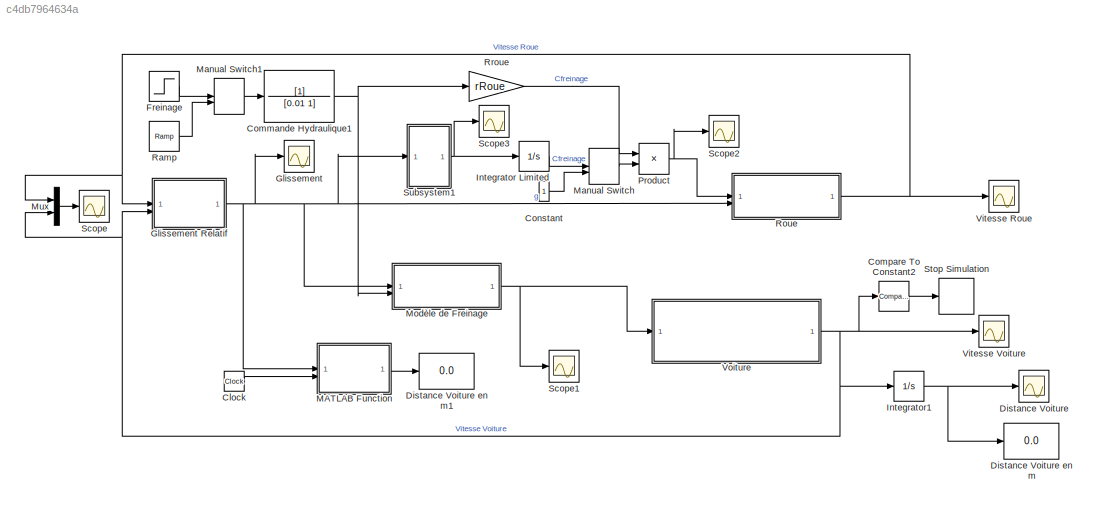
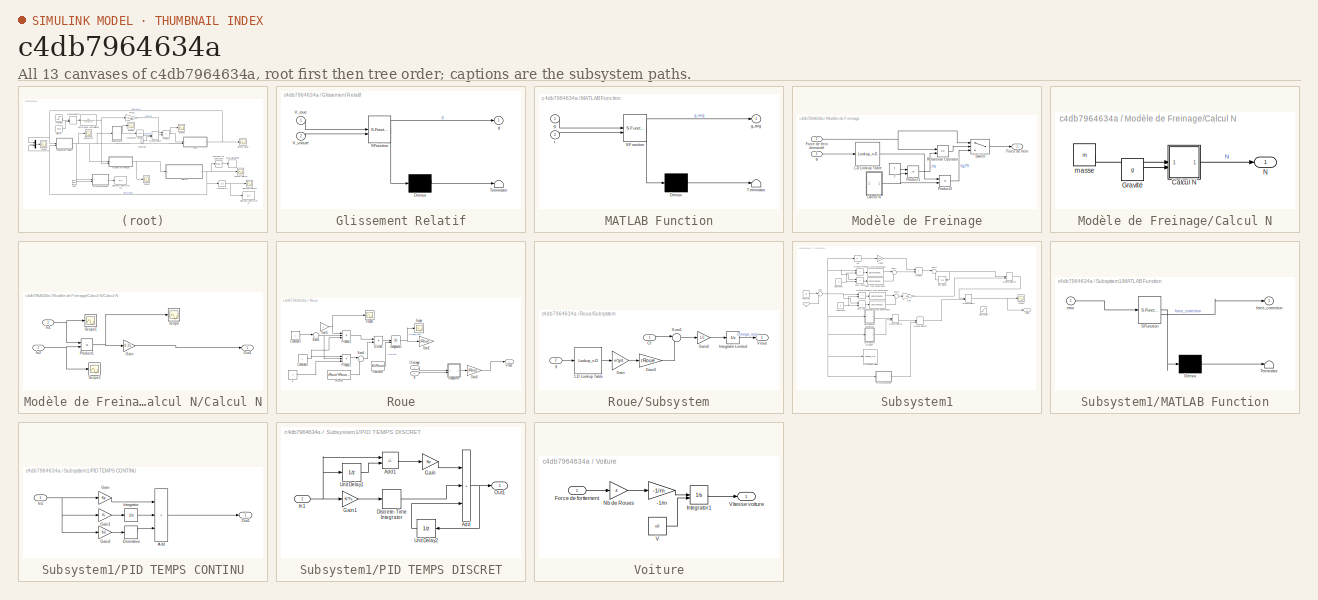
[diagram: thumbnail index - all 13 canvases of the model, root first then tree order]
MODEL slx_c4db7964634a
KIND model
CONFIG AbsTol = auto
CONFIG EnableMultiTasking = off
CONFIG FixedStep = auto
CONFIG InitFcn = Cte_TP_ABS_CHERIF
CONFIG MaxStep = auto
CONFIG MinStep = auto
CONFIG RelTol = 1e-3
CONFIG SampleTimeConstraint = Unconstrained
CONFIG SolverName = ode45
CONFIG StartTime = 0.0
CONFIG StopTime = 10é
BLOCK [Clock] Clock
BLOCK [TransferFcn] Commande Hydraulique1
  Denominator = [0.01 1]
BLOCK [Reference] Compare To Constant2  REF=simulink/Logic and Bit
Operations/Compare
To Constant
  SourceBlock = simulink/Logic and Bit\nOperations/Compare\nTo Constant
  SourceType = Compare To Constant
BLOCK [Constant] Constant
BLOCK [Scope] Distance Voiture
  Floating = off
  NumInputPorts = 1
  ScopeSpecificationString = Simulink.scopes.TimeScopeBlockCfg('CurrentConfiguration', extmgr.ConfigurationSet(extmgr.Configuration('Core','General UI',true),extmgr.Configuration('Core','Source UI',true),extmgr.Configuration('Sources','WiredSimulink',true,'DataLoggingVariableName','ScopeData9'),extmgr.Configuration('Visuals','Time Domain',true,'SerializedDisplays',{struct('MinYLimReal','-7.36109','MaxYLimReal','66.24979','YLa...<+1639ch>
BLOCK [Display] Distance Voiture en m
  Decimation = 1
BLOCK [Display] Distance Voiture en m1
  Decimation = 1
BLOCK [Step] Freinage
  After = 4000
  SampleTime = 0
  Time = 0
BLOCK [Scope] Glissement
  Floating = off
  NumInputPorts = 1
  ScopeSpecificationString = Simulink.scopes.TimeScopeBlockCfg('CurrentConfiguration', extmgr.ConfigurationSet(extmgr.Configuration('Core','General UI',true),extmgr.Configuration('Core','Source UI',true),extmgr.Configuration('Sources','WiredSimulink',true,'DataLoggingVariableName','ScopeData7'),extmgr.Configuration('Visuals','Time Domain',true,'SerializedDisplays',{struct('MinYLimReal','-337.36601','MaxYLimReal','38.59622','Y...<+1501ch>
BLOCK [SubSystem] Glissement Relatif
  ErrorFcn = Stateflow.Translate.translate
  PermitHierarchicalResolution = ExplicitOnly
  SFBlockType = MATLAB Function
  TreatAsAtomicUnit = on
BLOCK [Demux] Glissement Relatif/ Demux 
  Outputs = 1
BLOCK [S-Function] Glissement Relatif/ SFunction 
  EnableBusSupport = on
  FunctionName = sf_sfun
  PortCounts = [2 2]
  SFcnIsStateOwnerBlock = off
  SFunctionDeploymentMode = off
  Tag = Stateflow S-Function 2
BLOCK [Terminator] Glissement Relatif/ Terminator 
BLOCK [Inport] Glissement Relatif/V_roue
BLOCK [Inport] Glissement Relatif/V_voiture
  Port = 2
BLOCK [Outport] Glissement Relatif/g
BLOCK [Integrator] Integrator Limited
  LimitOutput = on
  LowerSaturationLimit = 0
  UpperSaturationLimit = 1
BLOCK [Integrator] Integrator1
BLOCK [SubSystem] MATLAB Function
  ErrorFcn = Stateflow.Translate.translate
  PermitHierarchicalResolution = ExplicitOnly
  SFBlockType = MATLAB Function
  TreatAsAtomicUnit = on
BLOCK [Demux] MATLAB Function/ Demux 
  Outputs = 1
BLOCK [S-Function] MATLAB Function/ SFunction 
  EnableBusSupport = on
  FunctionName = sf_sfun
  PortCounts = [2 2]
  SFcnIsStateOwnerBlock = off
  SFunctionDeploymentMode = off
  Tag = Stateflow S-Function 3
BLOCK [Terminator] MATLAB Function/ Terminator 
BLOCK [Inport] MATLAB Function/g
BLOCK [Outport] MATLAB Function/g_avg
BLOCK [Inport] MATLAB Function/t
  Port = 2
BLOCK [ManualSwitch] Manual Switch
BLOCK [ManualSwitch] Manual Switch1
BLOCK [SubSystem] Modèle de Freinage
BLOCK [Lookup_n-D] Modèle de Freinage/1-D Lookup Table
  BreakpointsForDimension1 = [0;0.050000000000000003;0.10000000000000001;0.14999999999999999;0.20000000000000001;0.25;0.29999999999999999;0.34999999999999998;0.40000000000000002;0.45000000000000001;0.5;0.55000000000000004;0.59999999999999998;0.65000000000000002;0.69999999999999996;0.75;0.80000000000000004;0.84999999999999998;0.90000000000000002;0.94999999999999996;1]
  InputPortMap = u0
  InternalRulePriority = Speed
  NumberOfTableDimensions = 1
  RndMeth = Simplest
  Table = [0;0.59999999999999998;0.92000000000000004;0.93999999999999995;0.94999999999999996;0.93000000000000005;0.90000000000000002;0.84999999999999998;0.80000000000000004;0.75;0.69999999999999996;0.67000000000000004;0.66000000000000003;0.65000000000000002;0.64500000000000002;0.64000000000000001;0.63700000000000001;0.63500000000000001;0.63;0.625;0.62]
BLOCK [SubSystem] Modèle de Freinage/Calcul N
BLOCK [SubSystem] Modèle de Freinage/Calcul N/Calcul N
BLOCK [Gain] Modèle de Freinage/Calcul N/Calcul N/Gain
  Gain = 0.25
BLOCK [Inport] Modèle de Freinage/Calcul N/Calcul N/In1
BLOCK [Inport] Modèle de Freinage/Calcul N/Calcul N/In2
  Port = 2
BLOCK [Outport] Modèle de Freinage/Calcul N/Calcul N/Out1
BLOCK [Product] Modèle de Freinage/Calcul N/Calcul N/Product1
BLOCK [Scope] Modèle de Freinage/Calcul N/Calcul N/Scope
  Floating = off
  NumInputPorts = 1
  ScopeSpecificationString = Simulink.scopes.TimeScopeBlockCfg('CurrentConfiguration', extmgr.ConfigurationSet(extmgr.Configuration('Core','General UI',true),extmgr.Configuration('Core','Source UI',true),extmgr.Configuration('Sources','WiredSimulink',true,'DataLoggingVariableName','ScopeData2'),extmgr.Configuration('Visuals','Time Domain',true,'SerializedDisplays',{struct('MinYLimReal','8810.00000','MaxYLimReal','10810.00000'...<+1559ch>
BLOCK [Scope] Modèle de Freinage/Calcul N/Calcul N/Scope1
  Floating = off
  NumInputPorts = 1
  ScopeSpecificationString = Simulink.scopes.TimeScopeBlockCfg('CurrentConfiguration', extmgr.ConfigurationSet(extmgr.Configuration('Core','General UI',true),extmgr.Configuration('Core','Source UI',true),extmgr.Configuration('Sources','WiredSimulink',true,'DataLoggingVariableName','ScopeData3'),extmgr.Configuration('Visuals','Time Domain',true,'SerializedDisplays',{struct('MinYLimReal','900.00000','MaxYLimReal','1100.00000','...<+1546ch>
BLOCK [Scope] Modèle de Freinage/Calcul N/Calcul N/Scope2
  Floating = off
  NumInputPorts = 1
  ScopeSpecificationString = Simulink.scopes.TimeScopeBlockCfg('CurrentConfiguration', extmgr.ConfigurationSet(extmgr.Configuration('Core','General UI',true),extmgr.Configuration('Core','Source UI',true),extmgr.Configuration('Sources','WiredSimulink',true,'DataLoggingVariableName','ScopeData4'),extmgr.Configuration('Visuals','Time Domain',true,'SerializedDisplays',{struct('MinYLimReal','8.81','MaxYLimReal','10.81','YLabelReal...<+1506ch>
BLOCK [Constant] Modèle de Freinage/Calcul N/Gravité
  Value = g
BLOCK [Outport] Modèle de Freinage/Calcul N/N
BLOCK [Constant] Modèle de Freinage/Calcul N/masse
  Value = m
BLOCK [Outport] Modèle de Freinage/Force de frein
BLOCK [Inport] Modèle de Freinage/Force de frein demandé
  Port = 2
BLOCK [Product] Modèle de Freinage/Product1
BLOCK [Product] Modèle de Freinage/Product3
BLOCK [RelationalOperator] Modèle de Freinage/Relational Operator
  InputSameDT = off
  Operator = <=
  OutDataTypeStr = boolean
  RndMeth = Simplest
BLOCK [Switch] Modèle de Freinage/Switch
  InputSameDT = off
  SaturateOnIntegerOverflow = off
  Threshold = 1
BLOCK [Constant] Modèle de Freinage/f
  Value = f
BLOCK [Inport] Modèle de Freinage/g
BLOCK [Mux] Mux
  DisplayOption = bar
  Inputs = 2
BLOCK [Product] Product
BLOCK [Reference] Ramp  REF=simulink/Sources/Ramp
  SourceBlock = simulink/Sources/Ramp
  SourceType = Ramp
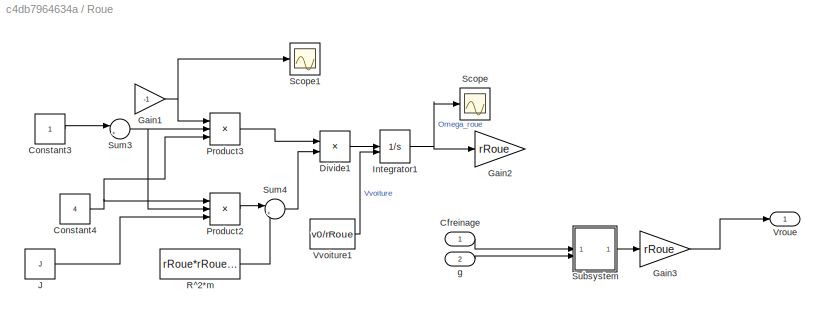
BLOCK [SubSystem] Roue
BLOCK [Inport] Roue/Cfreinage
BLOCK [Constant] Roue/Constant3
BLOCK [Constant] Roue/Constant4
  Value = 4
BLOCK [Product] Roue/Divide1
  Inputs = */
BLOCK [Gain] Roue/Gain1
  Gain = -1
BLOCK [Gain] Roue/Gain2
  Gain = rRoue
BLOCK [Gain] Roue/Gain3
  Gain = rRoue
BLOCK [Integrator] Roue/Integrator1
  InitialCondition = 27.77/0.3
  InitialConditionSource = external
BLOCK [Constant] Roue/J
  Value = J
BLOCK [Product] Roue/Product2
  Inputs = 3
BLOCK [Product] Roue/Product3
  Inputs = 3
BLOCK [Constant] Roue/R^2*m
  Value = rRoue*rRoue*m
BLOCK [Scope] Roue/Scope
  Floating = off
  NumInputPorts = 1
  ScopeSpecificationString = Simulink.scopes.TimeScopeBlockCfg('CurrentConfiguration', extmgr.ConfigurationSet(extmgr.Configuration('Core','General UI',true),extmgr.Configuration('Core','Source UI',true),extmgr.Configuration('Sources','WiredSimulink',true,'DataLoggingVariableName','ScopeData2'),extmgr.Configuration('Visuals','Time Domain',true,'SerializedDisplays',{struct('MinYLimReal','82.56667','MaxYLimReal','102.56667','YL...<+1510ch>
BLOCK [Scope] Roue/Scope1
  Floating = off
  NumInputPorts = 1
  ScopeSpecificationString = Simulink.scopes.TimeScopeBlockCfg('CurrentConfiguration', extmgr.ConfigurationSet(extmgr.Configuration('Core','General UI',true),extmgr.Configuration('Core','Source UI',true),extmgr.Configuration('Sources','WiredSimulink',true,'DataLoggingVariableName','ScopeData4'),extmgr.Configuration('Visuals','Time Domain',true,'SerializedDisplays',{struct('MinYLimReal','-1.00000','MaxYLimReal','1.00000','YLab...<+1530ch>
BLOCK [SubSystem] Roue/Subsystem
BLOCK [Lookup_n-D] Roue/Subsystem/1-D Lookup Table
  BreakpointsForDimension1 = [0;0.050000000000000003;0.10000000000000001;0.14999999999999999;0.20000000000000001;0.25;0.29999999999999999;0.34999999999999998;0.40000000000000002;0.45000000000000001;0.5;0.55000000000000004;0.59999999999999998;0.65000000000000002;0.69999999999999996;0.75;0.80000000000000004;0.84999999999999998;0.90000000000000002;0.94999999999999996;1]
  InputPortMap = u0
  InternalRulePriority = Speed
  NumberOfTableDimensions = 1
  RndMeth = Simplest
  Table = [0;0.59999999999999998;0.92000000000000004;0.93999999999999995;0.94999999999999996;0.93000000000000005;0.90000000000000002;0.84999999999999998;0.80000000000000004;0.75;0.69999999999999996;0.67000000000000004;0.66000000000000003;0.65000000000000002;0.64500000000000002;0.64000000000000001;0.63700000000000001;0.63500000000000001;0.63;0.625;0.62]
BLOCK [Inport] Roue/Subsystem/Cf
BLOCK [Gain] Roue/Subsystem/Gain
  Gain = m*g/4
BLOCK [Gain] Roue/Subsystem/Gain3
  Gain = rRoue
BLOCK [Gain] Roue/Subsystem/Gain4
  Gain = 1/J
BLOCK [Integrator] Roue/Subsystem/Integrator Limited
  InitialCondition = v0/rRoue
  LimitOutput = on
  LowerSaturationLimit = 0
  UpperSaturationLimit = 1000
BLOCK [Sum] Roue/Subsystem/Sum1
  Inputs = |-+
BLOCK [Outport] Roue/Subsystem/Vroue
BLOCK [Inport] Roue/Subsystem/g
  Port = 2
BLOCK [Sum] Roue/Sum3
  Inputs = |+-
BLOCK [Sum] Roue/Sum4
  Inputs = |++
BLOCK [Outport] Roue/Vroue
BLOCK [Constant] Roue/Vvoiture1
  Value = v0/rRoue
BLOCK [Inport] Roue/g
  Port = 2
BLOCK [Gain] Rroue
  Gain = rRoue
BLOCK [Scope] Scope
  Floating = off
  NumInputPorts = 1
  ScopeSpecificationString = Simulink.scopes.TimeScopeBlockCfg('CurrentConfiguration', extmgr.ConfigurationSet(extmgr.Configuration('Core','General UI',true),extmgr.Configuration('Core','Source UI',true),extmgr.Configuration('Sources','WiredSimulink',true,'DataLoggingVariableName','ScopeData10'),extmgr.Configuration('Visuals','Time Domain',true,'SerializedDisplays',{struct('MinYLimReal','-3.46627','MaxYLimReal','31.2407','YLa...<+1506ch>
BLOCK [Scope] Scope1
  Floating = off
  NumInputPorts = 1
  ScopeSpecificationString = Simulink.scopes.TimeScopeBlockCfg('CurrentConfiguration', extmgr.ConfigurationSet(extmgr.Configuration('Core','General UI',true),extmgr.Configuration('Core','Source UI',true),extmgr.Configuration('Sources','WiredSimulink',true,'DataLoggingVariableName','ScopeData8'),extmgr.Configuration('Visuals','Time Domain',true,'SerializedDisplays',{struct('MinYLimReal','-9896.88785','MaxYLimReal','3688.40421'...<+1530ch>
BLOCK [Scope] Scope2
  Floating = off
  NumInputPorts = 1
  ScopeSpecificationString = Simulink.scopes.TimeScopeBlockCfg('CurrentConfiguration', extmgr.ConfigurationSet(extmgr.Configuration('Core','General UI',true),extmgr.Configuration('Core','Source UI',true),extmgr.Configuration('Sources','WiredSimulink',true,'DataLoggingVariableName','ScopeData1'),extmgr.Configuration('Visuals','Time Domain',true,'SerializedDisplays',{struct('MinYLimReal','-75.00000','MaxYLimReal','675.00000','Y...<+1507ch>
BLOCK [Scope] Scope3
  Floating = off
  NumInputPorts = 1
  ScopeSpecificationString = Simulink.scopes.TimeScopeBlockCfg('CurrentConfiguration', extmgr.ConfigurationSet(extmgr.Configuration('Core','General UI',true),extmgr.Configuration('Core','Source UI',true),extmgr.Configuration('Sources','WiredSimulink',true,'DataLoggingVariableName','ScopeData2'),extmgr.Configuration('Visuals','Time Domain',true,'SerializedDisplays',{struct('MinYLimReal','-500.00000','MaxYLimReal','500.00000','...<+1514ch>
BLOCK [Stop] Stop Simulation
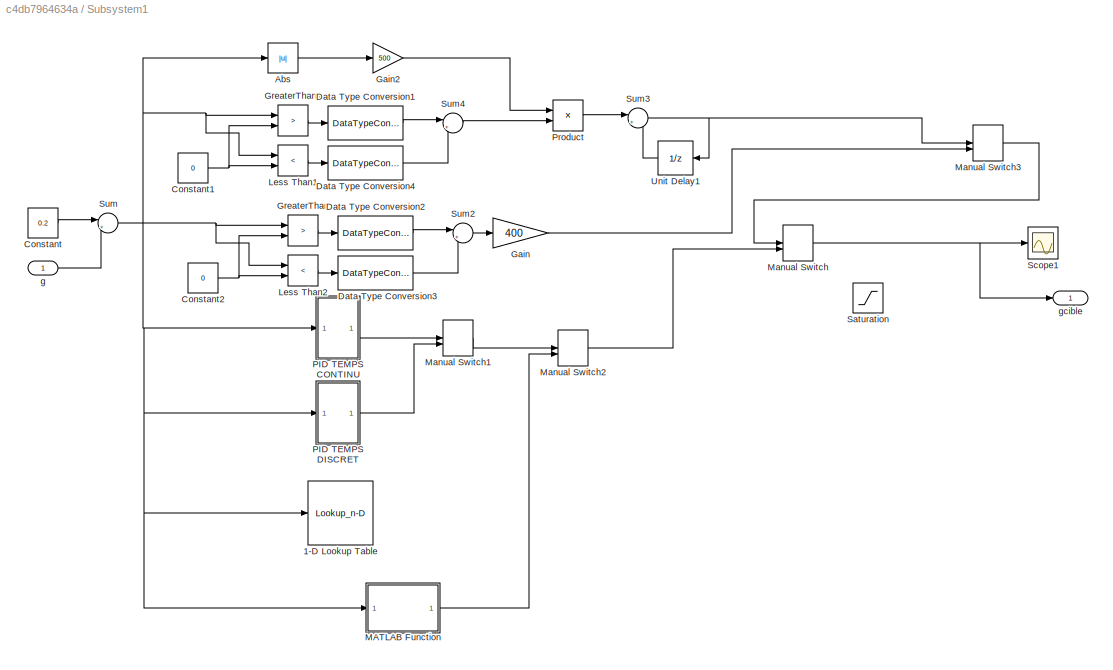
BLOCK [SubSystem] Subsystem1
BLOCK [Lookup_n-D] Subsystem1/1-D Lookup Table
  BreakpointsForDimension1 = [-0.80000000000000004;-0.59999999999999998;-0.40000000000000002;-0.20000000000000001;0;0.10000000000000001;0.20000000000000001]
  InputPortMap = u0
  InternalRulePriority = Speed
  NumberOfTableDimensions = 1
  RndMeth = Simplest
  Table = [-800;-600;-400;-200;0;200;400]
BLOCK [Abs] Subsystem1/Abs
  SaturateOnIntegerOverflow = off
BLOCK [Constant] Subsystem1/Constant
  Value = 0.2
BLOCK [Constant] Subsystem1/Constant1
  Value = 0
BLOCK [Constant] Subsystem1/Constant2
  Value = 0
BLOCK [DataTypeConversion] Subsystem1/Data Type Conversion1
  OutDataTypeStr = double
  SaturateOnIntegerOverflow = off
BLOCK [DataTypeConversion] Subsystem1/Data Type Conversion2
  OutDataTypeStr = double
  SaturateOnIntegerOverflow = off
BLOCK [DataTypeConversion] Subsystem1/Data Type Conversion3
  OutDataTypeStr = double
  SaturateOnIntegerOverflow = off
BLOCK [DataTypeConversion] Subsystem1/Data Type Conversion4
  OutDataTypeStr = double
  SaturateOnIntegerOverflow = off
BLOCK [Gain] Subsystem1/Gain
  Gain = 400
BLOCK [Gain] Subsystem1/Gain2
  Gain = 500
BLOCK [RelationalOperator] Subsystem1/GreaterThan
  InputSameDT = off
  Operator = >
  OutDataTypeStr = boolean
  RndMeth = Simplest
BLOCK [RelationalOperator] Subsystem1/GreaterThan1
  InputSameDT = off
  Operator = >
  OutDataTypeStr = boolean
  RndMeth = Simplest
BLOCK [RelationalOperator] Subsystem1/Less Than1
  InputSameDT = off
  Operator = <
  OutDataTypeStr = boolean
  RndMeth = Simplest
BLOCK [RelationalOperator] Subsystem1/Less Than2
  InputSameDT = off
  Operator = <
  OutDataTypeStr = boolean
  RndMeth = Simplest
BLOCK [SubSystem] Subsystem1/MATLAB Function
  ErrorFcn = Stateflow.Translate.translate
  PermitHierarchicalResolution = ExplicitOnly
  SFBlockType = MATLAB Function
  TreatAsAtomicUnit = on
BLOCK [Demux] Subsystem1/MATLAB Function/ Demux 
  Outputs = 1
BLOCK [S-Function] Subsystem1/MATLAB Function/ SFunction 
  EnableBusSupport = on
  FunctionName = sf_sfun
  PortCounts = [1 2]
  SFcnIsStateOwnerBlock = off
  SFunctionDeploymentMode = off
  Tag = Stateflow S-Function 1
BLOCK [Terminator] Subsystem1/MATLAB Function/ Terminator 
BLOCK [Inport] Subsystem1/MATLAB Function/error
BLOCK [Outport] Subsystem1/MATLAB Function/force_correction
BLOCK [ManualSwitch] Subsystem1/Manual Switch
BLOCK [ManualSwitch] Subsystem1/Manual Switch1
BLOCK [ManualSwitch] Subsystem1/Manual Switch2
BLOCK [ManualSwitch] Subsystem1/Manual Switch3
  CurrentSetting = 0
BLOCK [SubSystem] Subsystem1/PID TEMPS CONTINU
BLOCK [Sum] Subsystem1/PID TEMPS CONTINU/Add
  IconShape = rectangular
  Inputs = +++
BLOCK [Derivative] Subsystem1/PID TEMPS CONTINU/Derivative
BLOCK [Gain] Subsystem1/PID TEMPS CONTINU/Gain
  Gain = Kp
BLOCK [Gain] Subsystem1/PID TEMPS CONTINU/Gain1
  Gain = Ki
BLOCK [Gain] Subsystem1/PID TEMPS CONTINU/Gain2
  Gain = Kd
BLOCK [Inport] Subsystem1/PID TEMPS CONTINU/In1
BLOCK [Integrator] Subsystem1/PID TEMPS CONTINU/Integrator
BLOCK [Outport] Subsystem1/PID TEMPS CONTINU/Out1
BLOCK [SubSystem] Subsystem1/PID TEMPS DISCRET
BLOCK [Sum] Subsystem1/PID TEMPS DISCRET/Add
  IconShape = rectangular
  Inputs = +++
BLOCK [Sum] Subsystem1/PID TEMPS DISCRET/Add1
  IconShape = rectangular
  Inputs = +-
BLOCK [DiscreteIntegrator] Subsystem1/PID TEMPS DISCRET/Discrete-Time Integrator
  ICPrevOutput = DiscIntNeverNeededParam
  ICPrevScaledInput = DiscIntNeverNeededParam
  InitialConditionSetting = Auto
  SampleTime = -1
BLOCK [Gain] Subsystem1/PID TEMPS DISCRET/Gain
  Gain = Kp
BLOCK [Gain] Subsystem1/PID TEMPS DISCRET/Gain1
  Gain = Ki*Ts
BLOCK [Inport] Subsystem1/PID TEMPS DISCRET/In1
BLOCK [Outport] Subsystem1/PID TEMPS DISCRET/Out1
BLOCK [UnitDelay] Subsystem1/PID TEMPS DISCRET/Unit Delay1
  HasFrameUpgradeWarning = on
  SampleTime = 0.0001
BLOCK [UnitDelay] Subsystem1/PID TEMPS DISCRET/Unit Delay2
  HasFrameUpgradeWarning = on
  NameLocation = top
  SampleTime = 0.0001
BLOCK [Product] Subsystem1/Product
BLOCK [Saturate] Subsystem1/Saturation
BLOCK [Scope] Subsystem1/Scope1
  Floating = off
  NumInputPorts = 1
  ScopeSpecificationString = Simulink.scopes.TimeScopeBlockCfg('CurrentConfiguration', extmgr.ConfigurationSet(extmgr.Configuration('Core','General UI',true),extmgr.Configuration('Core','Source UI',true),extmgr.Configuration('Sources','WiredSimulink',true,'DataLoggingVariableName','ScopeData3'),extmgr.Configuration('Visuals','Time Domain',true,'SerializedDisplays',{struct('MinYLimReal','-500.00000','MaxYLimReal','500.00000','...<+1651ch>
BLOCK [Sum] Subsystem1/Sum
  Inputs = |+-
BLOCK [Sum] Subsystem1/Sum2
  Inputs = |+-
BLOCK [Sum] Subsystem1/Sum3
  Inputs = |++
BLOCK [Sum] Subsystem1/Sum4
  Inputs = |+-
BLOCK [UnitDelay] Subsystem1/Unit Delay1
  HasFrameUpgradeWarning = on
  NameLocation = top
  SampleTime = 0.0001
BLOCK [Inport] Subsystem1/g
BLOCK [Outport] Subsystem1/gcible
BLOCK [Scope] Vitesse Roue
  Floating = off
  NumInputPorts = 1
  ScopeSpecificationString = Simulink.scopes.TimeScopeBlockCfg('CurrentConfiguration', extmgr.ConfigurationSet(extmgr.Configuration('Core','General UI',true),extmgr.Configuration('Core','Source UI',true),extmgr.Configuration('Sources','WiredSimulink',true,'DataLoggingVariableName','ScopeData1'),extmgr.Configuration('Visuals','Time Domain',true,'SerializedDisplays',{struct('MinYLimReal','-3.47125','MaxYLimReal','31.24125','YLa...<+1640ch>
BLOCK [Scope] Vitesse Voiture
  Floating = off
  NumInputPorts = 1
  ScopeSpecificationString = Simulink.scopes.TimeScopeBlockCfg('CurrentConfiguration', extmgr.ConfigurationSet(extmgr.Configuration('Core','General UI',true),extmgr.Configuration('Core','Source UI',true),extmgr.Configuration('Sources','WiredSimulink',true,'DataLoggingVariableName','ScopeData2'),extmgr.Configuration('Visuals','Time Domain',true,'SerializedDisplays',{struct('MinYLimReal','-3.3422','MaxYLimReal','31.22691','YLab...<+1507ch>
BLOCK [SubSystem] Voiture
BLOCK [Gain] Voiture/-1//m
  Gain = -1/m
BLOCK [Inport] Voiture/Force de forttement
BLOCK [Integrator] Voiture/Integrator1
  InitialConditionSource = external
BLOCK [Gain] Voiture/Nb de Roues
  Gain = 4
BLOCK [Constant] Voiture/V
  Value = v0
BLOCK [Outport] Voiture/Vitesse voiture
LINE Clock:1 -> MATLAB Function:2
NET Commande Hydraulique1:1 -> Modèle de Freinage:2, Rroue:1
LINE Compare To Constant2:1 -> Stop Simulation:1
LINE Constant:1 -> Manual Switch:2
LINE Freinage:1 -> Manual Switch1:1
NET Glissement Relatif:1 -> Glissement:1, MATLAB Function:1, Modèle de Freinage:1, Roue:2, Subsystem1:1
LINE Integrator Limited:1 -> Manual Switch:1
NET Integrator1:1 -> Distance Voiture en m:1, Distance Voiture:1
LINE MATLAB Function:1 -> Distance Voiture en m1:1
LINE Manual Switch1:1 -> Commande Hydraulique1:1
LINE Manual Switch:1 -> Product:2
LINE Modèle de Freinage/1-D Lookup Table:1 -> Modèle de Freinage/Product3:1
LINE Modèle de Freinage/Calcul N/Calcul N/Gain:1 -> Modèle de Freinage/Calcul N/Calcul N/Out1:1
NET Modèle de Freinage/Calcul N/Calcul N/In1:1 -> Modèle de Freinage/Calcul N/Calcul N/Product1:1, Modèle de Freinage/Calcul N/Calcul N/Scope1:1
NET Modèle de Freinage/Calcul N/Calcul N/In2:1 -> Modèle de Freinage/Calcul N/Calcul N/Product1:2, Modèle de Freinage/Calcul N/Calcul N/Scope2:1
NET Modèle de Freinage/Calcul N/Calcul N/Product1:1 -> Modèle de Freinage/Calcul N/Calcul N/Gain:1, Modèle de Freinage/Calcul N/Calcul N/Scope:1
LINE Modèle de Freinage/Calcul N/Calcul N:1 -> Modèle de Freinage/Calcul N/N:1
LINE Modèle de Freinage/Calcul N/Gravité:1 -> Modèle de Freinage/Calcul N/Calcul N:2
LINE Modèle de Freinage/Calcul N/masse:1 -> Modèle de Freinage/Calcul N/Calcul N:1
NET Modèle de Freinage/Calcul N:1 -> Modèle de Freinage/Product1:2, Modèle de Freinage/Product3:2
NET Modèle de Freinage/Force de frein demandé:1 -> Modèle de Freinage/Relational Operator:1, Modèle de Freinage/Switch:1
LINE Modèle de Freinage/Product1:1 -> Modèle de Freinage/Relational Operator:2
LINE Modèle de Freinage/Product3:1 -> Modèle de Freinage/Switch:3
LINE Modèle de Freinage/Relational Operator:1 -> Modèle de Freinage/Switch:2
LINE Modèle de Freinage/Switch:1 -> Modèle de Freinage/Force de frein:1
LINE Modèle de Freinage/f:1 -> Modèle de Freinage/Product1:1
LINE Modèle de Freinage/g:1 -> Modèle de Freinage/1-D Lookup Table:1
NET Modèle de Freinage:1 -> Scope1:1, Voiture:1
LINE Mux:1 -> Scope:1
NET Product:1 -> Roue:1, Scope2:1
LINE Ramp:1 -> Manual Switch1:2
LINE Roue/Cfreinage:1 -> Roue/Subsystem:1
LINE Roue/Constant3:1 -> Roue/Sum3:1
NET Roue/Constant4:1 -> Roue/Product2:1, Roue/Product3:3
LINE Roue/Divide1:1 -> Roue/Integrator1:1
NET Roue/Gain1:1 -> Roue/Product3:1, Roue/Scope1:1
LINE Roue/Gain3:1 -> Roue/Vroue:1
NET Roue/Integrator1:1 -> Roue/Gain2:1, Roue/Scope:1
LINE Roue/J:1 -> Roue/Product2:3
LINE Roue/Product2:1 -> Roue/Sum4:1
LINE Roue/Product3:1 -> Roue/Divide1:1
LINE Roue/R^2*m:1 -> Roue/Sum4:2
LINE Roue/Subsystem/1-D Lookup Table:1 -> Roue/Subsystem/Gain:1
LINE Roue/Subsystem/Cf:1 -> Roue/Subsystem/Sum1:1
LINE Roue/Subsystem/Gain3:1 -> Roue/Subsystem/Sum1:2
LINE Roue/Subsystem/Gain4:1 -> Roue/Subsystem/Integrator Limited:1
LINE Roue/Subsystem/Gain:1 -> Roue/Subsystem/Gain3:1
LINE Roue/Subsystem/Integrator Limited:1 -> Roue/Subsystem/Vroue:1
LINE Roue/Subsystem/Sum1:1 -> Roue/Subsystem/Gain4:1
LINE Roue/Subsystem/g:1 -> Roue/Subsystem/1-D Lookup Table:1
LINE Roue/Subsystem:1 -> Roue/Gain3:1
NET Roue/Sum3:1 -> Roue/Product2:2, Roue/Product3:2
LINE Roue/Sum4:1 -> Roue/Divide1:2
LINE Roue/Vvoiture1:1 -> Roue/Integrator1:2
LINE Roue/g:1 -> Roue/Subsystem:2
NET Roue:1 -> Glissement Relatif:1, Mux:1, Vitesse Roue:1
LINE Rroue:1 -> Product:1
LINE Subsystem1/Abs:1 -> Subsystem1/Gain2:1
NET Subsystem1/Constant1:1 -> Subsystem1/GreaterThan1:2, Subsystem1/Less Than1:2
NET Subsystem1/Constant2:1 -> Subsystem1/GreaterThan:2, Subsystem1/Less Than2:2
LINE Subsystem1/Constant:1 -> Subsystem1/Sum:1
LINE Subsystem1/Data Type Conversion1:1 -> Subsystem1/Sum4:1
LINE Subsystem1/Data Type Conversion2:1 -> Subsystem1/Sum2:1
LINE Subsystem1/Data Type Conversion3:1 -> Subsystem1/Sum2:2
LINE Subsystem1/Data Type Conversion4:1 -> Subsystem1/Sum4:2
LINE Subsystem1/Gain2:1 -> Subsystem1/Product:1
LINE Subsystem1/Gain:1 -> Subsystem1/Manual Switch3:2
LINE Subsystem1/GreaterThan1:1 -> Subsystem1/Data Type Conversion1:1
LINE Subsystem1/GreaterThan:1 -> Subsystem1/Data Type Conversion2:1
LINE Subsystem1/Less Than1:1 -> Subsystem1/Data Type Conversion4:1
LINE Subsystem1/Less Than2:1 -> Subsystem1/Data Type Conversion3:1
LINE Subsystem1/MATLAB Function:1 -> Subsystem1/Manual Switch2:2
LINE Subsystem1/Manual Switch1:1 -> Subsystem1/Manual Switch2:1
LINE Subsystem1/Manual Switch2:1 -> Subsystem1/Manual Switch:2
LINE Subsystem1/Manual Switch3:1 -> Subsystem1/Manual Switch:1
NET Subsystem1/Manual Switch:1 -> Subsystem1/Scope1:1, Subsystem1/gcible:1
LINE Subsystem1/PID TEMPS CONTINU/Add:1 -> Subsystem1/PID TEMPS CONTINU/Out1:1
LINE Subsystem1/PID TEMPS CONTINU/Derivative:1 -> Subsystem1/PID TEMPS CONTINU/Add:3
LINE Subsystem1/PID TEMPS CONTINU/Gain1:1 -> Subsystem1/PID TEMPS CONTINU/Integrator:1
LINE Subsystem1/PID TEMPS CONTINU/Gain2:1 -> Subsystem1/PID TEMPS CONTINU/Derivative:1
LINE Subsystem1/PID TEMPS CONTINU/Gain:1 -> Subsystem1/PID TEMPS CONTINU/Add:1
NET Subsystem1/PID TEMPS CONTINU/In1:1 -> Subsystem1/PID TEMPS CONTINU/Gain1:1, Subsystem1/PID TEMPS CONTINU/Gain2:1, Subsystem1/PID TEMPS CONTINU/Gain:1
LINE Subsystem1/PID TEMPS CONTINU/Integrator:1 -> Subsystem1/PID TEMPS CONTINU/Add:2
LINE Subsystem1/PID TEMPS CONTINU:1 -> Subsystem1/Manual Switch1:1
LINE Subsystem1/PID TEMPS DISCRET/Add1:1 -> Subsystem1/PID TEMPS DISCRET/Gain:1
NET Subsystem1/PID TEMPS DISCRET/Add:1 -> Subsystem1/PID TEMPS DISCRET/Out1:1, Subsystem1/PID TEMPS DISCRET/Unit Delay2:1
LINE Subsystem1/PID TEMPS DISCRET/Discrete-Time Integrator:1 -> Subsystem1/PID TEMPS DISCRET/Add:2
LINE Subsystem1/PID TEMPS DISCRET/Gain1:1 -> Subsystem1/PID TEMPS DISCRET/Discrete-Time Integrator:1
LINE Subsystem1/PID TEMPS DISCRET/Gain:1 -> Subsystem1/PID TEMPS DISCRET/Add:1
NET Subsystem1/PID TEMPS DISCRET/In1:1 -> Subsystem1/PID TEMPS DISCRET/Add1:1, Subsystem1/PID TEMPS DISCRET/Gain1:1, Subsystem1/PID TEMPS DISCRET/Unit Delay1:1
LINE Subsystem1/PID TEMPS DISCRET/Unit Delay1:1 -> Subsystem1/PID TEMPS DISCRET/Add1:2
LINE Subsystem1/PID TEMPS DISCRET/Unit Delay2:1 -> Subsystem1/PID TEMPS DISCRET/Add:3
LINE Subsystem1/PID TEMPS DISCRET:1 -> Subsystem1/Manual Switch1:2
LINE Subsystem1/Product:1 -> Subsystem1/Sum3:1
LINE Subsystem1/Sum2:1 -> Subsystem1/Gain:1
NET Subsystem1/Sum3:1 -> Subsystem1/Manual Switch3:1, Subsystem1/Unit Delay1:1
LINE Subsystem1/Sum4:1 -> Subsystem1/Product:2
NET Subsystem1/Sum:1 -> Subsystem1/1-D Lookup Table:1, Subsystem1/Abs:1, Subsystem1/GreaterThan1:1, Subsystem1/GreaterThan:1, Subsystem1/Less Than1:1, Subsystem1/Less Than2:1, Subsystem1/MATLAB Function:1, Subsystem1/PID TEMPS CONTINU:1, Subsystem1/PID TEMPS DISCRET:1
LINE Subsystem1/Unit Delay1:1 -> Subsystem1/Sum3:2
LINE Subsystem1/g:1 -> Subsystem1/Sum:2
NET Subsystem1:1 -> Integrator Limited:1, Scope3:1
LINE Voiture/-1//m:1 -> Voiture/Integrator1:1
LINE Voiture/Force de forttement:1 -> Voiture/Nb de Roues:1
LINE Voiture/Integrator1:1 -> Voiture/Vitesse voiture:1
LINE Voiture/Nb de Roues:1 -> Voiture/-1//m:1
LINE Voiture/V:1 -> Voiture/Integrator1:2
NET Voiture:1 -> Compare To Constant2:1, Glissement Relatif:2, Integrator1:1, Mux:2, Vitesse Voiture:1
note: NET lines group one-source signal fan-out (src -> all destinations, sorted); 1:1 wires keep LINE
CHART Glissement Relatif states=1 transitions=1
  STATE_LABEL 'eML_blk_kernel()'
  STATE_LABEL 'SCRIPT:\nfunction g = calcGlissement(V_roue, V_voiture)\n    g = 1 - (V_roue / V_voiture);\n\nend\n'
CHART MATLAB Function states=1 transitions=1
  STATE_LABEL 'eML_blk_kernel()'
  STATE_LABEL 'SCRIPT:\nfunction g_avg = calculateGlissementAverage(g, t)\n% Function to calculate the average of glissement (g) over time (t).\n% Inputs:\n%   g  - Current value of the glissement\n%   t  - Current simulation time\n% Output:\n%   g_avg - Average value of the glissement over time\n\n    % Persistent variable to store cumulative sum of g\n    persistent cumulativeSum;\n    % Persistent variable to store the ...<+540ch>'
CHART Subsystem1/MATLAB Function states=1 transitions=1
  STATE_LABEL 'eML_blk_kernel()'
  STATE_LABEL "SCRIPT:\nfunction force_correction = ABS_Control(error)\n    % Paramètres de la fonction\n    max_force = 2000;        % Force de freinage maximale\n    min_force = -5500;       % Force de freinage minimale\n    increment = 100;         % Pas d'augmentation/diminution de la force\n    threshold = 0;        % Plage d'hystérésis\n    alpha = 0.5;            % Coefficient de lissage (0.9 = forte atténuation...<+1006ch>"
CHART  states=0 transitions=0
CHART  states=0 transitions=0
CHART  states=0 transitions=0
